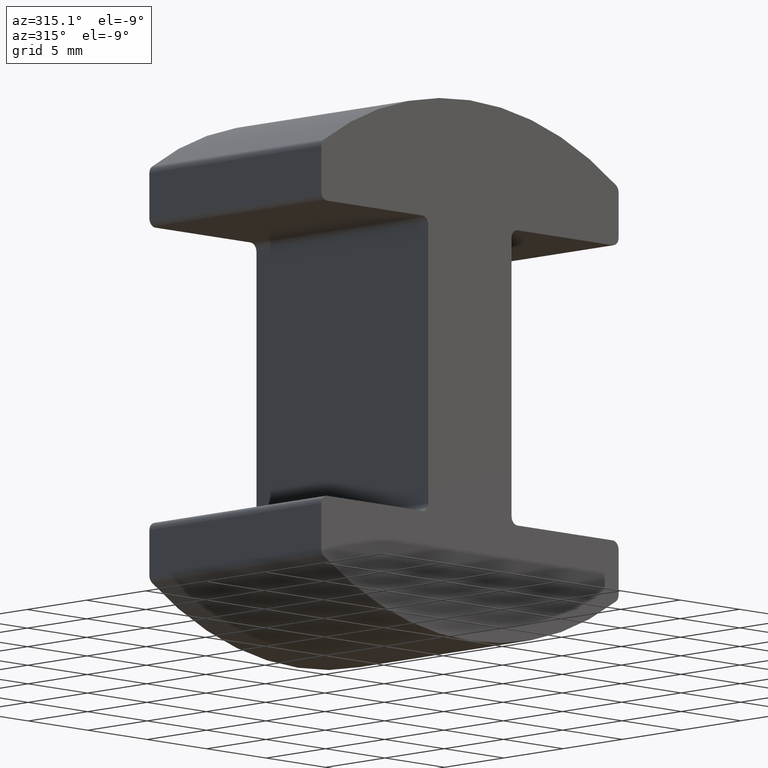
[diagram: clean part render]
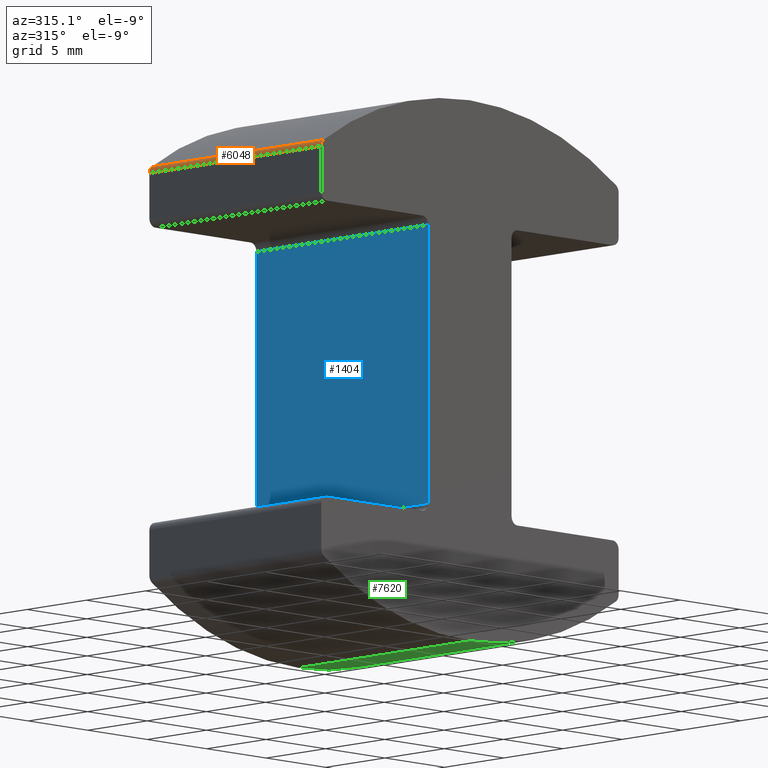
[diagram: same view with three faces highlighted in distinct colors, each labeled with its STEP entity id]
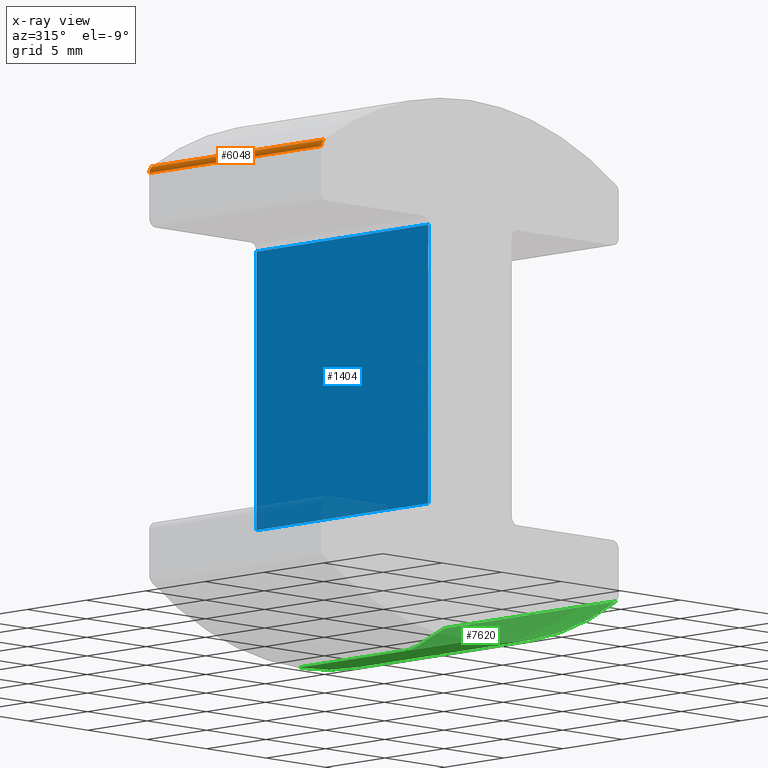
[diagram: x-ray of the same camera — body ghosted, the three highlighted faces saturated]
A machine part, auxiliary view with three faces highlighted in distinct colors.
The next image is the same camera in x-ray (body ghosted, the three faces saturated) — at least one of them is partly hidden behind the body in this view.
Their STEP definitions:

[orange] entity #6048 — the highlighted cylindrical surface (edge-blend (fillet) strip) has radius 0.5 mm, axis along (-0, -1, -0).
#419 = DIRECTION ( 'NONE',  ( 0.0000000000000000000, 0.0000000000000000000, -1.000000000000000000 ) ) ;
#421 = CIRCLE ( 'NONE', #2982, 0.5000000000000004400 ) ;
#1029 = AXIS2_PLACEMENT_3D ( 'NONE', #2119, #11566, #2154 ) ;
#1260 = CARTESIAN_POINT ( 'NONE',  ( -12.00000000000000000, 7.250000000000000000, 12.13569578467959600 ) ) ;
#1724 = DIRECTION ( 'NONE',  ( 0.0000000000000000000, 0.0000000000000000000, -1.000000000000000000 ) ) ;
#1965 = CARTESIAN_POINT ( 'NONE',  ( -12.50000000000000000, -7.250000000000000000, 12.13569578467959600 ) ) ;
#1981 = VERTEX_POINT ( 'NONE', #3911 ) ;
#2000 = VERTEX_POINT ( 'NONE', #11523 ) ;
#2119 = CARTESIAN_POINT ( 'NONE',  ( -12.00000000000000000, 7.250000000000000000, 12.13569578467959600 ) ) ;
#2154 = DIRECTION ( 'NONE',  ( -3.469446951953611000E-015, 0.0000000000000000000, -1.000000000000000000 ) ) ;
#2187 = DIRECTION ( 'NONE',  ( -0.0000000000000000000, -1.000000000000000000, -0.0000000000000000000 ) ) ;
#2432 = LINE ( 'NONE', #10287, #8089 ) ;
#2982 = AXIS2_PLACEMENT_3D ( 'NONE', #7446, #5402, #1724 ) ;
#3003 = EDGE_CURVE ( 'NONE', #6683, #1981, #4101, .T. ) ;
#3141 = EDGE_LOOP ( 'NONE', ( #11148, #6527, #8450, #11628 ) ) ;
#3911 = CARTESIAN_POINT ( 'NONE',  ( -12.27906976744186100, 7.250000000000000000, 12.55056933758451100 ) ) ;
#4101 = CIRCLE ( 'NONE', #1029, 0.5000000000000004400 ) ;
#4520 = LINE ( 'NONE', #9440, #6611 ) ;
#5402 = DIRECTION ( 'NONE',  ( -0.0000000000000000000, -1.000000000000000000, 0.0000000000000000000 ) ) ;
#5502 = VERTEX_POINT ( 'NONE', #1965 ) ;
#6048 = ADVANCED_FACE ( 'NONE', ( #6479 ), #6936, .T. ) ;
#6479 = FACE_OUTER_BOUND ( 'NONE', #3141, .T. ) ;
#6527 = ORIENTED_EDGE ( 'NONE', *, *, #8517, .F. ) ;
#6592 = DIRECTION ( 'NONE',  ( 0.0000000000000000000, 1.000000000000000000, 0.0000000000000000000 ) ) ;
#6611 = VECTOR ( 'NONE', #6592, 1000.000000000000000 ) ;
#6683 = VERTEX_POINT ( 'NONE', #10399 ) ;
#6936 = CYLINDRICAL_SURFACE ( 'NONE', #12062, 0.5000000000000004400 ) ;
#7402 = EDGE_CURVE ( 'NONE', #1981, #2000, #2432, .T. ) ;
#7446 = CARTESIAN_POINT ( 'NONE',  ( -12.00000000000000000, -7.250000000000000000, 12.13569578467959600 ) ) ;
#8089 = VECTOR ( 'NONE', #10330, 1000.000000000000000 ) ;
#8450 = ORIENTED_EDGE ( 'NONE', *, *, #10880, .F. ) ;
#8517 = EDGE_CURVE ( 'NONE', #5502, #6683, #4520, .T. ) ;
#9440 = CARTESIAN_POINT ( 'NONE',  ( -12.50000000000000000, 7.250000000000000000, 12.13569578467959600 ) ) ;
#10287 = CARTESIAN_POINT ( 'NONE',  ( -12.27906976744186100, 7.250000000000000000, 12.55056933758451100 ) ) ;
#10330 = DIRECTION ( 'NONE',  ( -0.0000000000000000000, -1.000000000000000000, -0.0000000000000000000 ) ) ;
#10399 = CARTESIAN_POINT ( 'NONE',  ( -12.50000000000000000, 7.250000000000000000, 12.13569578467959600 ) ) ;
#10880 = EDGE_CURVE ( 'NONE', #2000, #5502, #421, .T. ) ;
#11148 = ORIENTED_EDGE ( 'NONE', *, *, #3003, .F. ) ;
#11523 = CARTESIAN_POINT ( 'NONE',  ( -12.27906976744186100, -7.250000000000000000, 12.55056933758451100 ) ) ;
#11566 = DIRECTION ( 'NONE',  ( 0.0000000000000000000, 1.000000000000000000, -0.0000000000000000000 ) ) ;
#11628 = ORIENTED_EDGE ( 'NONE', *, *, #7402, .F. ) ;
#12062 = AXIS2_PLACEMENT_3D ( 'NONE', #1260, #2187, #419 ) ;

[blue] entity #1404 — the highlighted planar face has unit normal (-1, 0, 0).
#748 = LINE ( 'NONE', #2545, #9102 ) ;
#827 = LINE ( 'NONE', #1512, #10680 ) ;
#1102 = VECTOR ( 'NONE', #9136, 1000.000000000000000 ) ;
#1191 = CARTESIAN_POINT ( 'NONE',  ( -3.499999999999997300, -7.250000000000000000, 8.399999999999998600 ) ) ;
#1404 = ADVANCED_FACE ( 'NONE', ( #12160 ), #4622, .T. ) ;
#1512 = CARTESIAN_POINT ( 'NONE',  ( -3.499999999999999600, -7.250000000000000000, -8.399999999999995000 ) ) ;
#1592 = DIRECTION ( 'NONE',  ( -1.000000000000000000, 0.0000000000000000000, 1.218204688185960600E-016 ) ) ;
#2545 = CARTESIAN_POINT ( 'NONE',  ( -3.499999999999997300, -7.250000000000000000, 8.899999999999998600 ) ) ;
#2805 = VERTEX_POINT ( 'NONE', #6034 ) ;
#2917 = EDGE_CURVE ( 'NONE', #5863, #6932, #5764, .T. ) ;
#3104 = ORIENTED_EDGE ( 'NONE', *, *, #2917, .T. ) ;
#3451 = CARTESIAN_POINT ( 'NONE',  ( -3.499999999999999600, 7.250000000000000000, -8.399999999999995000 ) ) ;
#3562 = DIRECTION ( 'NONE',  ( 0.0000000000000000000, -1.000000000000000000, 0.0000000000000000000 ) ) ;
#3753 = VERTEX_POINT ( 'NONE', #1191 ) ;
#4260 = CARTESIAN_POINT ( 'NONE',  ( -3.499999999999997300, 7.250000000000000000, 8.899999999999998600 ) ) ;
#4467 = EDGE_LOOP ( 'NONE', ( #3104, #8929, #5245, #6530 ) ) ;
#4574 = DIRECTION ( 'NONE',  ( 1.218204688185960600E-016, 0.0000000000000000000, 1.000000000000000000 ) ) ;
#4622 = PLANE ( 'NONE',  #11084 ) ;
#4721 = EDGE_CURVE ( 'NONE', #6932, #2805, #827, .T. ) ;
#5245 = ORIENTED_EDGE ( 'NONE', *, *, #9864, .F. ) ;
#5480 = CARTESIAN_POINT ( 'NONE',  ( -3.499999999999997300, 7.250000000000000000, 8.899999999999998600 ) ) ;
#5764 = LINE ( 'NONE', #4260, #10977 ) ;
#5863 = VERTEX_POINT ( 'NONE', #7878 ) ;
#6034 = CARTESIAN_POINT ( 'NONE',  ( -3.499999999999999600, -7.250000000000000000, -8.399999999999995000 ) ) ;
#6530 = ORIENTED_EDGE ( 'NONE', *, *, #6656, .T. ) ;
#6656 = EDGE_CURVE ( 'NONE', #3753, #5863, #11396, .T. ) ;
#6932 = VERTEX_POINT ( 'NONE', #3451 ) ;
#7878 = CARTESIAN_POINT ( 'NONE',  ( -3.499999999999997300, 7.250000000000000000, 8.399999999999998600 ) ) ;
#8929 = ORIENTED_EDGE ( 'NONE', *, *, #4721, .T. ) ;
#9102 = VECTOR ( 'NONE', #9169, 1000.000000000000000 ) ;
#9136 = DIRECTION ( 'NONE',  ( -0.0000000000000000000, 1.000000000000000000, -0.0000000000000000000 ) ) ;
#9169 = DIRECTION ( 'NONE',  ( -1.218204688185960300E-016, 0.0000000000000000000, -1.000000000000000000 ) ) ;
#9864 = EDGE_CURVE ( 'NONE', #3753, #2805, #748, .T. ) ;
#10680 = VECTOR ( 'NONE', #3562, 1000.000000000000000 ) ;
#10885 = DIRECTION ( 'NONE',  ( -1.218204688185960300E-016, 0.0000000000000000000, -1.000000000000000000 ) ) ;
#10977 = VECTOR ( 'NONE', #10885, 1000.000000000000000 ) ;
#11084 = AXIS2_PLACEMENT_3D ( 'NONE', #5480, #1592, #4574 ) ;
#11396 = LINE ( 'NONE', #12104, #1102 ) ;
#12104 = CARTESIAN_POINT ( 'NONE',  ( -3.499999999999997300, 7.250000000000000000, 8.399999999999998600 ) ) ;
#12160 = FACE_OUTER_BOUND ( 'NONE', #4467, .T. ) ;

[green] entity #7620 — the highlighted cylindrical surface (partial cylindrical patch) has radius 22 mm, axis along (-0, -1, -0).
#532 = CARTESIAN_POINT ( 'NONE',  ( 1.158013753664825400E-039, 7.250000000000000000, -16.29613300976832600 ) ) ;
#1335 = DIRECTION ( 'NONE',  ( -0.0000000000000000000, -1.000000000000000000, -0.0000000000000000000 ) ) ;
#1389 = VECTOR ( 'NONE', #1335, 1000.000000000000000 ) ;
#1500 = EDGE_LOOP ( 'NONE', ( #6700, #4112, #8475, #1840 ) ) ;
#1840 = ORIENTED_EDGE ( 'NONE', *, *, #5215, .F. ) ;
#2104 = AXIS2_PLACEMENT_3D ( 'NONE', #10962, #2417, #9089 ) ;
#2417 = DIRECTION ( 'NONE',  ( -0.0000000000000000000, -1.000000000000000000, 0.0000000000000000000 ) ) ;
#2880 = VERTEX_POINT ( 'NONE', #3334 ) ;
#3074 = CARTESIAN_POINT ( 'NONE',  ( 1.158013753664825400E-039, -7.250000000000000000, -16.29613300976832600 ) ) ;
#3334 = CARTESIAN_POINT ( 'NONE',  ( 12.27906976744185900, -7.250000000000000000, -12.55056933758450900 ) ) ;
#3947 = AXIS2_PLACEMENT_3D ( 'NONE', #7621, #8798, #8721 ) ;
#4020 = VERTEX_POINT ( 'NONE', #11958 ) ;
#4112 = ORIENTED_EDGE ( 'NONE', *, *, #5057, .T. ) ;
#4256 = AXIS2_PLACEMENT_3D ( 'NONE', #9659, #5748, #7586 ) ;
#5057 = EDGE_CURVE ( 'NONE', #8451, #4020, #8269, .T. ) ;
#5215 = EDGE_CURVE ( 'NONE', #8817, #2880, #11543, .T. ) ;
#5606 = EDGE_CURVE ( 'NONE', #8451, #8817, #9761, .T. ) ;
#5748 = DIRECTION ( 'NONE',  ( -0.0000000000000000000, -1.000000000000000000, 0.0000000000000000000 ) ) ;
#5876 = EDGE_CURVE ( 'NONE', #4020, #2880, #9165, .T. ) ;
#6700 = ORIENTED_EDGE ( 'NONE', *, *, #5606, .F. ) ;
#6945 = CARTESIAN_POINT ( 'NONE',  ( 12.27906976744186100, 7.250000000000000000, -12.55056933758450900 ) ) ;
#7586 = DIRECTION ( 'NONE',  ( 0.0000000000000000000, 0.0000000000000000000, -1.000000000000000000 ) ) ;
#7620 = ADVANCED_FACE ( 'NONE', ( #9886 ), #10034, .T. ) ;
#7621 = CARTESIAN_POINT ( 'NONE',  ( 1.158013753664825400E-039, 7.250000000000000000, 5.703866990231668800 ) ) ;
#8269 = CIRCLE ( 'NONE', #2104, 21.99999999999999600 ) ;
#8451 = VERTEX_POINT ( 'NONE', #10468 ) ;
#8475 = ORIENTED_EDGE ( 'NONE', *, *, #5876, .T. ) ;
#8721 = DIRECTION ( 'NONE',  ( 0.0000000000000000000, 0.0000000000000000000, -1.000000000000000000 ) ) ;
#8798 = DIRECTION ( 'NONE',  ( -0.0000000000000000000, -1.000000000000000000, -0.0000000000000000000 ) ) ;
#8817 = VERTEX_POINT ( 'NONE', #3074 ) ;
#9089 = DIRECTION ( 'NONE',  ( 0.0000000000000000000, 0.0000000000000000000, -1.000000000000000000 ) ) ;
#9135 = DIRECTION ( 'NONE',  ( -0.0000000000000000000, -1.000000000000000000, -0.0000000000000000000 ) ) ;
#9165 = LINE ( 'NONE', #6945, #1389 ) ;
#9659 = CARTESIAN_POINT ( 'NONE',  ( 1.158013753664825400E-039, -7.250000000000000000, 5.703866990231668800 ) ) ;
#9761 = LINE ( 'NONE', #532, #11671 ) ;
#9886 = FACE_OUTER_BOUND ( 'NONE', #1500, .T. ) ;
#10034 = CYLINDRICAL_SURFACE ( 'NONE', #3947, 21.99999999999999600 ) ;
#10468 = CARTESIAN_POINT ( 'NONE',  ( 1.158013753664825400E-039, 7.250000000000000000, -16.29613300976832600 ) ) ;
#10962 = CARTESIAN_POINT ( 'NONE',  ( 1.158013753664825400E-039, 7.250000000000000000, 5.703866990231668800 ) ) ;
#11543 = CIRCLE ( 'NONE', #4256, 21.99999999999999600 ) ;
#11671 = VECTOR ( 'NONE', #9135, 1000.000000000000000 ) ;
#11958 = CARTESIAN_POINT ( 'NONE',  ( 12.27906976744185900, 7.250000000000000000, -12.55056933758450900 ) ) ;